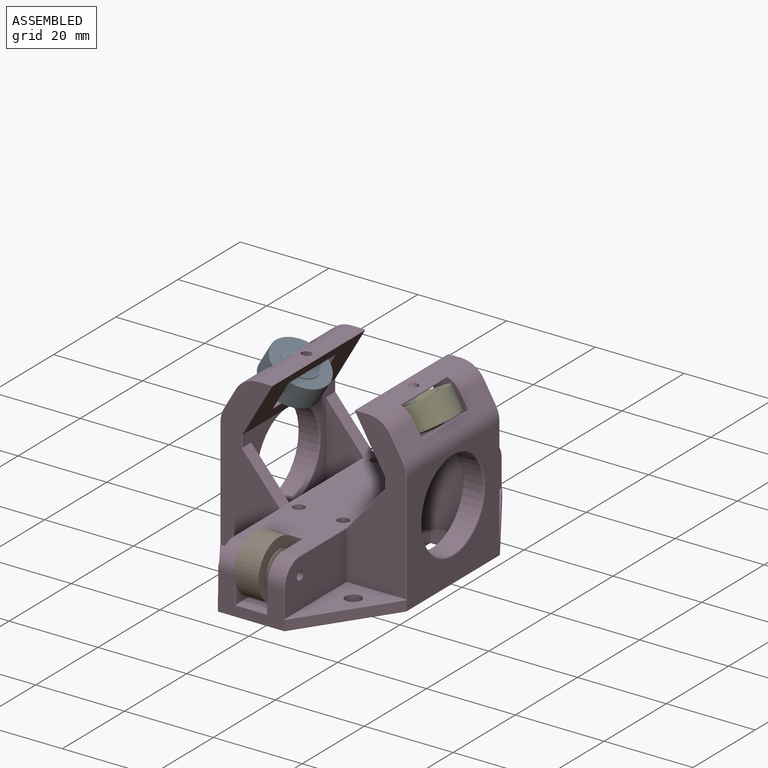
[diagram: assembled view]
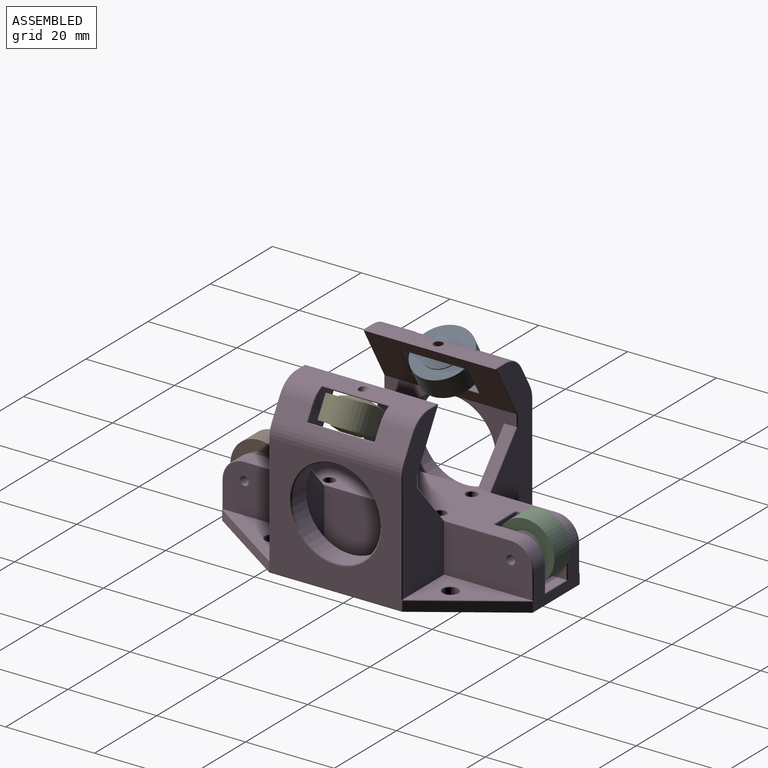
[diagram: assembled view, second angle]
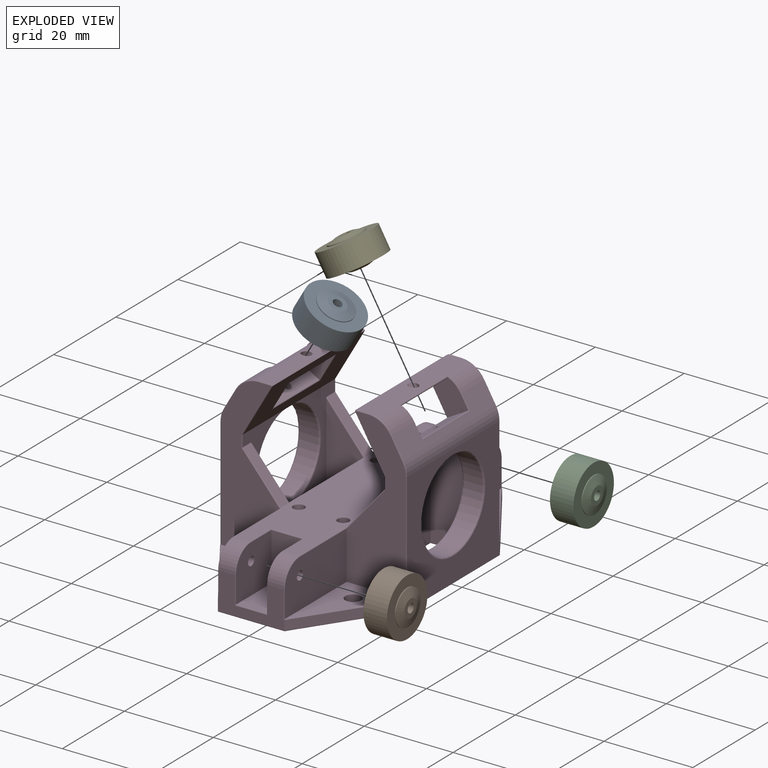
[diagram: exploded view]
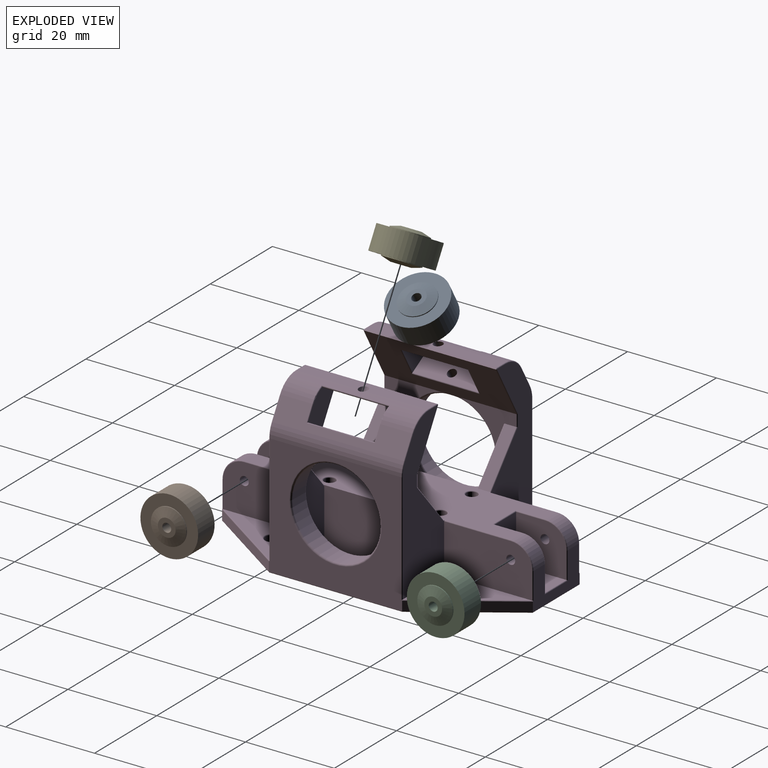
[diagram: exploded view, second angle]
ASSEMBLY  parts=5 mates=4
PART A: 10 faces, bbox 13x13x6.9 mm
  f0: cylinder r=6.5mm len=13mm, axis (0,0,-1), area 216.5mm2, adj f1,f2
  f1: plane 13x13mm, normal (0,0,1), area 82.5mm2, adj f0,f3
  f2: plane 13x13mm, normal (0,0,-1), area 82.5mm2, adj f0,f5
  f3: cylinder r=4mm len=8mm, axis (0,0,-1), area 5mm2, adj f1,f7
  f4: plane 4x4mm, normal (0,0,1), area 9.4mm2, adj f7,f9
  f5: cylinder r=4mm len=8mm, axis (0,0,1), area 5mm2, adj f2,f8
  f6: plane 4x4mm, normal (0,0,-1), area 9.4mm2, adj f8,f9
  f7: cone r=2mm half-angle=73.3deg, axis (0,0,-1), area 39.4mm2, adj f3,f4
  f8: cone r=2mm half-angle=73.3deg, axis (0,0,1), area 39.4mm2, adj f5,f6
  f9: cylinder r=1mm len=6.9mm, axis (0,0,1), area 43.4mm2, adj f4,f6
PART B: same geometry as A
PART C: same geometry as A
PART D: 214 faces, bbox 43.1x70.9x39.1 mm
  f0: plane 29.6x4.61mm, normal (-0.87,0,0.5), area 100.5mm2, adj f1,f55,f124,f151,f158,f159,f161
  f1: cylinder r=6mm len=29.6mm, axis (0,-1,0), area 120.9mm2, adj f0,f49,f80,f125,f152,f160,f162,f163
  f2: plane 29.63x11.72mm, normal (0.87,0,-0.5), area 285.6mm2, adj f41,f69,f103,f130,f157,f174,f175,f176
  f3: plane 29.6x4.61mm, normal (0.87,0,0.5), area 100.5mm2, adj f4,f56,f133,f142,f164,f165,f167
  f4: cylinder r=6mm len=29.6mm, axis (0,-1,0), area 120.9mm2, adj f3,f14,f78,f134,f143,f166,f168,f169
  f5: plane 29.63x11.72mm, normal (-0.87,0,-0.5), area 285.6mm2, adj f6,f36,f106,f139,f148,f178,f179,f180
  f6: plane 29.6x0.34mm, normal (-0.5,0,0.87), area 11.6mm2, adj f5,f14,f137,f146
  f7: plane 22.99x8.5mm, normal (0,-1,0), area 152.9mm2, adj f18,f36,f173,f202
  f8: plane 22.99x8.5mm, normal (0,1,0), area 152.9mm2, adj f20,f41,f171,f198
  f9: plane 69.6x41.6mm, normal (0,0,-1), area 1854.3mm2, adj f182,f183,f184,f185,f186,f187,f188,f189
  f10: plane 60.07x15.6mm, normal (0,0,1), area 762.5mm2, adj f12,f13,f15,f18,f20,f50,f51,f52
  f11: plane 22.99x8.5mm, normal (0,-1,0), area 152.9mm2, adj f20,f41,f170,f201
  f12: plane 35.3x13.5mm, normal (0,1,0), area 314.4mm2, adj f10,f21,f22,f84,f101,f149,f150,f151
  f13: plane 35.3x13.5mm, normal (0,-1,0), area 314.4mm2, adj f10,f23,f24,f99,f110,f122,f123,f124
  f14: plane 29.6x2.75mm, normal (0,0,1), area 79mm2, adj f4,f6,f78,f135,f144
  f15: plane 35.3x13.5mm, normal (0,-1,0), area 314.4mm2, adj f10,f16,f17,f98,f119,f131,f132,f133
  f16: plane 19.8x10.82mm, normal (1,0,0), area 205.8mm2, adj f15,f17,f47,f98,f119,f120,f121
  f17: plane 19.64x13.26mm, normal (0,0,1), area 118.3mm2, adj f15,f16,f98,f206
  f18: plane 24.5x13.4mm, normal (1,0,0), area 319.2mm2, adj f7,f10,f37,f172,f173,f204
  f19: plane 19.64x13.26mm, normal (0,0,1), area 118.3mm2, adj f29,f50,f100,f207
  f20: plane 24.5x13.4mm, normal (-1,0,0), area 319.2mm2, adj f8,f10,f11,f170,f171,f200
  f21: plane 19.8x10.82mm, normal (-1,0,0), area 205.8mm2, adj f12,f22,f45,f84,f85,f86,f101
  f22: plane 19.64x13.26mm, normal (0,0,1), area 118.3mm2, adj f12,f21,f101,f208
  f23: plane 19.64x13.26mm, normal (0,0,1), area 118.3mm2, adj f13,f24,f99,f209
  f24: plane 19.8x10.82mm, normal (-1,0,0), area 205.8mm2, adj f13,f23,f48,f99,f108,f109,f110
  f25: plane 11.3x10.8mm, normal (1,0,0), area 114mm2, adj f26,f40,f48,f116,f117,f118
  f26: plane 10.8x7mm, normal (0,-1,0), area 75.6mm2, adj f25,f27,f40,f114
  f27: plane 11.3x10.8mm, normal (-1,0,0), area 114mm2, adj f26,f40,f47,f111,f112,f113
  f28: plane 15x8.3mm, normal (0,-1,0), area 76.2mm2, adj f39,f44,f58,f59,f98,f99,f108,f113
  f29: plane 19.8x10.82mm, normal (1,0,0), area 205.8mm2, adj f19,f46,f50,f95,f96,f97,f100
  f30: plane 11.3x10.8mm, normal (-1,0,0), area 114mm2, adj f31,f34,f46,f87,f88,f89
  f31: plane 10.8x7mm, normal (0,1,0), area 75.6mm2, adj f30,f32,f34,f91
  f32: plane 11.3x10.8mm, normal (1,0,0), area 114mm2, adj f31,f34,f45,f92,f93,f94
  f33: plane 15x8.3mm, normal (0,1,0), area 76.2mm2, adj f38,f42,f57,f60,f85,f88,f90,f92
  f34: plane 11.3x7mm, normal (0,0,1), area 79.1mm2, adj f30,f31,f32,f90
  f35: plane 30x27.19mm, normal (1,0,0), area 466mm2, adj f38,f39,f56,f98,f100,f107,f131,f140
  f36: plane 29.7x26.01mm, normal (-1,0,0), area 297.7mm2, adj f5,f7,f37,f51,f52,f105,f138,f147
  f37: plane 22.99x8.5mm, normal (0,1,0), area 152.9mm2, adj f18,f36,f172,f205
  f38: plane 20x13.5mm, normal (0.83,0.56,0), area 50.7mm2, adj f33,f35,f100,f193
  f39: plane 20x13.5mm, normal (0.83,-0.56,0), area 50.7mm2, adj f28,f35,f98,f197
  f40: plane 11.3x7mm, normal (0,0,1), area 79.1mm2, adj f25,f26,f27,f115
  f41: plane 29.7x26.01mm, normal (1,0,0), area 297.7mm2, adj f2,f8,f11,f53,f54,f102,f129,f156
  f42: plane 20x13.5mm, normal (-0.83,0.56,0), area 50.7mm2, adj f33,f43,f101,f190
  f43: plane 30x27.19mm, normal (-1,0,0), area 466mm2, adj f42,f44,f55,f99,f101,f104,f122,f149
  f44: plane 20x13.5mm, normal (-0.83,-0.56,0), area 50.7mm2, adj f28,f43,f99,f194
  f45: cylinder r=1mm len=4mm, axis (1,0,0), area 25.1mm2, adj f21,f32
  f46: cylinder r=1mm len=4mm, axis (1,0,0), area 25.1mm2, adj f29,f30
  f47: cylinder r=1mm len=4mm, axis (1,0,0), area 25.1mm2, adj f16,f27
  f48: cylinder r=1mm len=4mm, axis (1,0,0), area 25.1mm2, adj f24,f25
  f49: plane 29.6x2.75mm, normal (0,0,1), area 79mm2, adj f1,f69,f80,f126,f153
  f50: plane 35.3x13.5mm, normal (0,1,0), area 314.4mm2, adj f10,f19,f29,f96,f100,f140,f141,f142
  f51: plane 10x8.5mm, normal (-0.76,0,0.65), area 34.1mm2, adj f10,f36,f136,f172
  f52: plane 10x8.5mm, normal (-0.76,0,0.65), area 34.1mm2, adj f10,f36,f145,f173
  f53: plane 10x8.5mm, normal (0.76,0,0.65), area 34.1mm2, adj f10,f41,f127,f171
  f54: plane 10x8.5mm, normal (0.76,0,0.65), area 34.1mm2, adj f10,f41,f154,f170
  f55: cylinder r=6mm len=29.6mm, axis (0,-1,0), area 93mm2, adj f0,f43,f123,f150
  f56: cylinder r=6mm len=29.6mm, axis (0,1,0), area 93mm2, adj f3,f35,f132,f141
  f57: cylinder r=5mm len=5mm, axis (1,0,0), area 28.3mm2, adj f10,f33,f87,f97
  f58: cylinder r=5mm len=5mm, axis (-1,0,0), area 28.3mm2, adj f10,f28,f111,f121
  f59: cylinder r=5mm len=5mm, axis (-1,0,0), area 28.3mm2, adj f10,f28,f109,f118
  f60: cylinder r=5mm len=5mm, axis (1,0,0), area 28.3mm2, adj f10,f33,f86,f94
  f61: cylinder r=1.25mm len=13.1mm, axis (0,0,-1), area 102.9mm2, adj f189,f213
  f62: cylinder r=1.25mm len=13.1mm, axis (0,0,-1), area 102.9mm2, adj f188,f212
  f63: cylinder r=1.25mm len=13.1mm, axis (0,0,-1), area 102.9mm2, adj f187,f211
  f64: cylinder r=1.25mm len=13.1mm, axis (0,0,-1), area 102.9mm2, adj f186,f210
  f65: cylinder r=1.75mm len=3.5mm, axis (0,0,-1), area 23.1mm2, adj f184,f209
  f66: cylinder r=1.75mm len=3.5mm, axis (0,0,-1), area 23.1mm2, adj f185,f208
  f67: cylinder r=1.75mm len=3.5mm, axis (0,0,-1), area 23.1mm2, adj f183,f207
  f68: cylinder r=1.75mm len=3.5mm, axis (0,0,-1), area 23.1mm2, adj f182,f206
  f69: plane 29.6x0.34mm, normal (0.5,0,0.87), area 11.6mm2, adj f2,f49,f128,f155
  f70: plane 8.18x8.15mm, normal (0,1,0), area 36.3mm2, adj f71,f73,f167,f168,f169,f181
  f71: plane 15x4.65mm, normal (-0.5,0,0.87), area 77.5mm2, adj f70,f72,f79,f165,f180
  f72: plane 8.18x8.15mm, normal (0,-1,0), area 36.3mm2, adj f71,f73,f164,f166,f168,f178
  f73: plane 15x3.5mm, normal (0.5,0,-0.87), area 57.5mm2, adj f70,f72,f78,f168,f179
  f74: plane 8.18x8.15mm, normal (0,-1,0), area 36.3mm2, adj f75,f77,f161,f162,f163,f177
  f75: plane 15x4.65mm, normal (0.5,0,0.87), area 77.5mm2, adj f74,f76,f81,f159,f176
  f76: plane 8.18x8.15mm, normal (0,1,0), area 36.3mm2, adj f75,f77,f158,f160,f162,f174
  f77: plane 15x3.5mm, normal (-0.5,0,-0.87), area 57.5mm2, adj f74,f76,f80,f162,f175
  f78: cylinder r=1mm len=3.11mm, axis (-0.5,0,0.87), area 11.8mm2, adj f4,f14,f73
  f79: cylinder r=1mm len=5.83mm, axis (-0.5,0,0.87), area 31.6mm2, adj f71,f82
  f80: cylinder r=1mm len=3.11mm, axis (0.5,0,0.87), area 11.6mm2, adj f1,f49,f77
  f81: cylinder r=1mm len=5.83mm, axis (0.5,0,0.87), area 31.6mm2, adj f75,f83
  f82: cylinder r=10mm len=20mm, axis (1,0,0), area 260.3mm2, adj f79,f105,f106,f107
  f83: cylinder r=10mm len=20mm, axis (-1,0,0), area 260.3mm2, adj f81,f102,f103,f104
  f84: cylinder r=0.2mm len=15mm, axis (0,1,0), area 4.7mm2, adj f10,f12,f21,f86
  f85: cylinder r=0.2mm len=6.02mm, axis (0,0,1), area 1.9mm2, adj f21,f33,f86,f101
  f86: torus R=4.8mm, axis (1,0,0), area 2.4mm2, adj f21,f60,f84,f85
  f87: torus R=4.8mm, axis (1,0,0), area 2.4mm2, adj f30,f57,f88,f89
  f88: cylinder r=0.2mm len=6.2mm, axis (0,0,1), area 1.9mm2, adj f30,f33,f87,f90
  f89: cylinder r=0.2mm len=6.7mm, axis (0,1,0), area 2.1mm2, adj f10,f30,f87,f91
  f90: cylinder r=0.2mm len=7.4mm, axis (1,0,0), area 2.3mm2, adj f33,f34,f88,f92
  f91: cylinder r=0.2mm len=7.4mm, axis (1,0,0), area 2.3mm2, adj f10,f31,f89,f93
  f92: cylinder r=0.2mm len=6.2mm, axis (0,0,-1), area 1.9mm2, adj f32,f33,f90,f94
  f93: cylinder r=0.2mm len=6.7mm, axis (0,-1,0), area 2.1mm2, adj f10,f32,f91,f94
  f94: torus R=4.8mm, axis (1,0,0), area 2.4mm2, adj f32,f60,f92,f93
  f95: cylinder r=0.2mm len=6.02mm, axis (0,0,1), area 1.9mm2, adj f29,f33,f97,f100
  f96: cylinder r=0.2mm len=15mm, axis (0,-1,0), area 4.7mm2, adj f10,f29,f50,f97
  f97: torus R=4.8mm, axis (-1,0,0), area 2.4mm2, adj f29,f57,f95,f96
  f98: cylinder r=0.2mm len=20.34mm, axis (-0.56,-0.83,0), area 7.6mm2, adj f15,f16,f17,f28,f35,f39,f120,f131
  f99: cylinder r=0.2mm len=20.34mm, axis (-0.56,0.83,0), area 7.6mm2, adj f13,f23,f24,f28,f43,f44,f108,f122
  f100: cylinder r=0.2mm len=20.34mm, axis (0.56,-0.83,0), area 7.6mm2, adj f19,f29,f33,f35,f38,f50,f95,f140
  f101: cylinder r=0.2mm len=20.34mm, axis (0.56,0.83,0), area 7.6mm2, adj f12,f21,f22,f33,f42,f43,f85,f149
  f102: torus R=10.4mm, axis (1,0,0), area 37.1mm2, adj f41,f83,f103
  f103: bspline ~5.22x0.46mm, area 2mm2, adj f2,f83,f102
  f104: torus R=10.4mm, axis (1,0,0), area 40.1mm2, adj f43,f83
  f105: torus R=10.4mm, axis (1,0,0), area 37.1mm2, adj f36,f82,f106
  f106: bspline ~5.22x0.46mm, area 2mm2, adj f5,f82,f105
  f107: torus R=10.4mm, axis (1,0,0), area 40.1mm2, adj f35,f82
  f108: cylinder r=0.2mm len=6.02mm, axis (0,0,-1), area 1.9mm2, adj f24,f28,f99,f109
  f109: torus R=4.8mm, axis (1,0,0), area 2.4mm2, adj f24,f59,f108,f110
  f110: cylinder r=0.2mm len=15mm, axis (0,1,0), area 4.7mm2, adj f10,f13,f24,f109
  f111: torus R=4.8mm, axis (-1,0,0), area 2.4mm2, adj f27,f58,f112,f113
  f112: cylinder r=0.2mm len=6.7mm, axis (0,1,0), area 2.1mm2, adj f10,f27,f111,f114
  f113: cylinder r=0.2mm len=6.2mm, axis (0,0,1), area 1.9mm2, adj f27,f28,f111,f115
  f114: cylinder r=0.2mm len=7.4mm, axis (-1,0,0), area 2.3mm2, adj f10,f26,f112,f116
  f115: cylinder r=0.2mm len=7.4mm, axis (-1,0,0), area 2.3mm2, adj f28,f40,f113,f117
  f116: cylinder r=0.2mm len=6.7mm, axis (0,-1,0), area 2.1mm2, adj f10,f25,f114,f118
  f117: cylinder r=0.2mm len=6.2mm, axis (0,0,-1), area 1.9mm2, adj f25,f28,f115,f118
  f118: torus R=4.8mm, axis (-1,0,0), area 2.4mm2, adj f25,f59,f116,f117
  f119: cylinder r=0.2mm len=15mm, axis (0,-1,0), area 4.7mm2, adj f10,f15,f16,f121
  f120: cylinder r=0.2mm len=6.02mm, axis (0,0,-1), area 1.9mm2, adj f16,f28,f98,f121
  f121: torus R=4.8mm, axis (-1,0,0), area 2.4mm2, adj f16,f58,f119,f120
  f122: cylinder r=0.2mm len=24.91mm, axis (0,0,1), area 7.8mm2, adj f13,f43,f99,f123
  f123: torus R=5.8mm, axis (0,-1,0), area 1mm2, adj f13,f55,f122,f124
  f124: cylinder r=0.2mm len=4.71mm, axis (-0.5,0,-0.87), area 1.7mm2, adj f0,f13,f123,f125
  f125: torus R=5.8mm, axis (0,-1,0), area 2mm2, adj f1,f13,f124,f126
  f126: cylinder r=0.2mm len=2.75mm, axis (-1,0,0), area 0.9mm2, adj f13,f49,f125,f128
  f127: cylinder r=0.2mm len=10.19mm, axis (-0.65,0,0.76), area 4.1mm2, adj f10,f13,f53,f129
  f128: cylinder r=0.2mm len=0.44mm, axis (0.87,0,-0.5), area 0.1mm2, adj f13,f69,f126,f130
  f129: cylinder r=0.2mm len=2.74mm, axis (0,0,1), area 0.8mm2, adj f13,f41,f127,f130
  f130: cylinder r=0.2mm len=11.84mm, axis (-0.5,0,-0.87), area 4.2mm2, adj f2,f13,f128,f129
  f131: cylinder r=0.2mm len=24.91mm, axis (0,0,1), area 7.8mm2, adj f15,f35,f98,f132
  f132: torus R=5.8mm, axis (0,1,0), area 1mm2, adj f15,f56,f131,f133
  f133: cylinder r=0.2mm len=4.71mm, axis (-0.5,0,0.87), area 1.7mm2, adj f3,f15,f132,f134
  f134: torus R=5.8mm, axis (0,1,0), area 2mm2, adj f4,f15,f133,f135
  f135: cylinder r=0.2mm len=2.75mm, axis (-1,0,0), area 0.9mm2, adj f14,f15,f134,f137
  f136: cylinder r=0.2mm len=10.19mm, axis (0.65,0,0.76), area 4.1mm2, adj f10,f15,f51,f138
  f137: cylinder r=0.2mm len=0.44mm, axis (0.87,0,0.5), area 0.1mm2, adj f6,f15,f135,f139
  f138: cylinder r=0.2mm len=2.74mm, axis (0,0,1), area 0.8mm2, adj f15,f36,f136,f139
  f139: cylinder r=0.2mm len=11.84mm, axis (-0.5,0,0.87), area 4.2mm2, adj f5,f15,f137,f138
  f140: cylinder r=0.2mm len=24.91mm, axis (0,0,-1), area 7.8mm2, adj f35,f50,f100,f141
  f141: torus R=5.8mm, axis (0,1,0), area 1mm2, adj f50,f56,f140,f142
  f142: cylinder r=0.2mm len=4.71mm, axis (-0.5,0,0.87), area 1.7mm2, adj f3,f50,f141,f143
  f143: torus R=5.8mm, axis (0,1,0), area 2mm2, adj f4,f50,f142,f144
  f144: cylinder r=0.2mm len=2.75mm, axis (1,0,0), area 0.9mm2, adj f14,f50,f143,f146
  f145: cylinder r=0.2mm len=10.19mm, axis (0.65,0,0.76), area 4.1mm2, adj f10,f50,f52,f147
  f146: cylinder r=0.2mm len=0.44mm, axis (0.87,0,0.5), area 0.1mm2, adj f6,f50,f144,f148
  f147: cylinder r=0.2mm len=2.74mm, axis (0,0,1), area 0.8mm2, adj f36,f50,f145,f148
  f148: cylinder r=0.2mm len=11.84mm, axis (0.5,0,-0.87), area 4.2mm2, adj f5,f50,f146,f147
  f149: cylinder r=0.2mm len=24.91mm, axis (0,0,-1), area 7.8mm2, adj f12,f43,f101,f150
  f150: torus R=5.8mm, axis (0,-1,0), area 1mm2, adj f12,f55,f149,f151
  f151: cylinder r=0.2mm len=4.71mm, axis (-0.5,0,-0.87), area 1.7mm2, adj f0,f12,f150,f152
  f152: torus R=5.8mm, axis (0,-1,0), area 2mm2, adj f1,f12,f151,f153
  f153: cylinder r=0.2mm len=2.75mm, axis (1,0,0), area 0.9mm2, adj f12,f49,f152,f155
  f154: cylinder r=0.2mm len=10.19mm, axis (0.65,0,-0.76), area 4.1mm2, adj f10,f12,f54,f156
  f155: cylinder r=0.2mm len=0.44mm, axis (0.87,0,-0.5), area 0.1mm2, adj f12,f69,f153,f157
  f156: cylinder r=0.2mm len=2.74mm, axis (0,0,-1), area 0.8mm2, adj f12,f41,f154,f157
  f157: cylinder r=0.2mm len=11.84mm, axis (0.5,0,0.87), area 4.2mm2, adj f2,f12,f155,f156
  f158: cylinder r=0.2mm len=3.3mm, axis (-0.5,0,-0.87), area 1.1mm2, adj f0,f76,f159,f160
  f159: cylinder r=0.2mm len=15.4mm, axis (0,1,0), area 4.8mm2, adj f0,f75,f158,f161
  f160: torus R=5.8mm, axis (0,-1,0), area 1.3mm2, adj f1,f76,f158,f162
  f161: cylinder r=0.2mm len=3.3mm, axis (0.5,0,0.87), area 1.1mm2, adj f0,f74,f159,f163
  f162: cylinder r=0.2mm len=15.4mm, axis (0,-1,0), area 6.9mm2, adj f1,f74,f76,f77,f160,f163
  f163: torus R=5.8mm, axis (0,-1,0), area 1.3mm2, adj f1,f74,f161,f162
  f164: cylinder r=0.2mm len=3.3mm, axis (-0.5,0,0.87), area 1.1mm2, adj f3,f72,f165,f166
  f165: cylinder r=0.2mm len=15.4mm, axis (0,1,0), area 4.8mm2, adj f3,f71,f164,f167
  f166: torus R=5.8mm, axis (0,1,0), area 1.3mm2, adj f4,f72,f164,f168
  f167: cylinder r=0.2mm len=3.3mm, axis (0.5,0,-0.87), area 1.1mm2, adj f3,f70,f165,f169
  f168: cylinder r=0.2mm len=15.4mm, axis (0,-1,0), area 6.9mm2, adj f4,f70,f72,f73,f166,f169
  f169: torus R=5.8mm, axis (0,1,0), area 1.3mm2, adj f4,f70,f167,f168
  f170: cylinder r=0.2mm len=10.31mm, axis (-0.65,0,0.76), area 4.1mm2, adj f11,f20,f41,f54
  f171: cylinder r=0.2mm len=10.31mm, axis (0.65,0,-0.76), area 4.1mm2, adj f8,f20,f41,f53
  f172: cylinder r=0.2mm len=10.31mm, axis (0.65,0,0.76), area 4.1mm2, adj f18,f36,f37,f51
  f173: cylinder r=0.2mm len=10.31mm, axis (-0.65,0,-0.76), area 4.1mm2, adj f7,f18,f36,f52
  f174: cylinder r=0.2mm len=6.51mm, axis (0.5,0,0.87), area 2.3mm2, adj f2,f76,f175,f176
  f175: cylinder r=0.2mm len=15.4mm, axis (0,1,0), area 4.8mm2, adj f2,f77,f174,f177
  f176: cylinder r=0.2mm len=15.4mm, axis (0,-1,0), area 4.8mm2, adj f2,f75,f174,f177
  f177: cylinder r=0.2mm len=6.51mm, axis (-0.5,0,-0.87), area 2.3mm2, adj f2,f74,f175,f176
  f178: cylinder r=0.2mm len=6.51mm, axis (-0.5,0,0.87), area 2.3mm2, adj f5,f72,f179,f180
  f179: cylinder r=0.2mm len=15.4mm, axis (0,-1,0), area 4.8mm2, adj f5,f73,f178,f181
  f180: cylinder r=0.2mm len=15.4mm, axis (0,1,0), area 4.8mm2, adj f5,f71,f178,f181
  f181: cylinder r=0.2mm len=6.51mm, axis (0.5,0,-0.87), area 2.3mm2, adj f5,f70,f179,f180
  f182: torus R=1.95mm, axis (0,0,1), area 3.6mm2, adj f9,f68
  f183: torus R=1.95mm, axis (0,0,1), area 3.6mm2, adj f9,f67
  f184: torus R=1.95mm, axis (0,0,1), area 3.6mm2, adj f9,f65
  f185: torus R=1.95mm, axis (0,0,1), area 3.6mm2, adj f9,f66
  f186: torus R=1.45mm, axis (0,0,1), area 2.6mm2, adj f9,f64
  f187: torus R=1.45mm, axis (0,0,1), area 2.6mm2, adj f9,f63
  f188: torus R=1.45mm, axis (0,0,1), area 2.6mm2, adj f9,f62
  f189: torus R=1.45mm, axis (0,0,1), area 2.6mm2, adj f9,f61
  f190: cylinder r=0.2mm len=20.11mm, axis (-0.56,-0.83,0), area 7.6mm2, adj f9,f42,f191,f192
  f191: cylinder r=0.2mm len=15mm, axis (-1,0,0), area 4.7mm2, adj f9,f33,f190,f193
  f192: cylinder r=0.2mm len=30mm, axis (0,-1,0), area 9.4mm2, adj f9,f43,f190,f194
  f193: cylinder r=0.2mm len=20.11mm, axis (-0.56,0.83,0), area 7.6mm2, adj f9,f38,f191,f195
  f194: cylinder r=0.2mm len=20.11mm, axis (0.56,-0.83,0), area 7.6mm2, adj f9,f44,f192,f196
  f195: cylinder r=0.2mm len=30mm, axis (0,1,0), area 9.4mm2, adj f9,f35,f193,f197
  f196: cylinder r=0.2mm len=15mm, axis (1,0,0), area 4.7mm2, adj f9,f28,f194,f197
  f197: cylinder r=0.2mm len=20.11mm, axis (0.56,0.83,0), area 7.6mm2, adj f9,f39,f195,f196
  f198: cylinder r=0.2mm len=8.9mm, axis (-1,0,0), area 2.7mm2, adj f8,f9,f199,f200
  f199: cylinder r=0.2mm len=24.4mm, axis (0,1,0), area 7.6mm2, adj f9,f41,f198,f201
  f200: cylinder r=0.2mm len=24.4mm, axis (0,-1,0), area 7.6mm2, adj f9,f20,f198,f201
  f201: cylinder r=0.2mm len=8.9mm, axis (1,0,0), area 2.7mm2, adj f9,f11,f199,f200
  f202: cylinder r=0.2mm len=8.9mm, axis (1,0,0), area 2.7mm2, adj f7,f9,f203,f204
  f203: cylinder r=0.2mm len=24.4mm, axis (0,-1,0), area 7.6mm2, adj f9,f36,f202,f205
  f204: cylinder r=0.2mm len=24.4mm, axis (0,1,0), area 7.6mm2, adj f9,f18,f202,f205
  f205: cylinder r=0.2mm len=8.9mm, axis (-1,0,0), area 2.7mm2, adj f9,f37,f203,f204
  f206: torus R=1.95mm, axis (0,0,1), area 3.6mm2, adj f17,f68
  f207: torus R=1.95mm, axis (0,0,1), area 3.6mm2, adj f19,f67
  f208: torus R=1.95mm, axis (0,0,1), area 3.6mm2, adj f22,f66
  f209: torus R=1.95mm, axis (0,0,1), area 3.6mm2, adj f23,f65
  f210: torus R=1.45mm, axis (0,0,1), area 2.6mm2, adj f10,f64
  f211: torus R=1.45mm, axis (0,0,1), area 2.6mm2, adj f10,f63
  f212: torus R=1.45mm, axis (0,0,1), area 2.6mm2, adj f10,f62
  f213: torus R=1.45mm, axis (0,0,1), area 2.6mm2, adj f10,f61
PART E: same geometry as A
PLACE A rot(axis=(0,1,0),30deg) t=(-37.51,-2.1,20.13)mm
PLACE B rot(axis=(0,1,0),90deg) t=(-24.12,-32.1,-1.48)mm
PLACE C rot(axis=(0,1,0),90deg) t=(-24.12,27.9,-1.48)mm
PLACE D t=(-21.52,-2.1,-10.98)mm
PLACE E rot(axis=(0,-1,0),30deg) t=(-5.53,-2.1,20.13)mm
MATE ball B.f0 <-> D.f47  axis (1,0,0) through (-18.02,-32.1,-1.48)mm
MATE ball C.f0 <-> D.f45  axis (1,0,0) through (-18.02,27.9,-1.48)mm
MATE ball E.f0 <-> D.f78  axis (-0.5,0,0.87) through (-8.58,-2.1,25.41)mm
MATE ball A.f0 <-> D.f80  axis (0.5,0,0.87) through (-34.46,-2.1,25.41)mm
